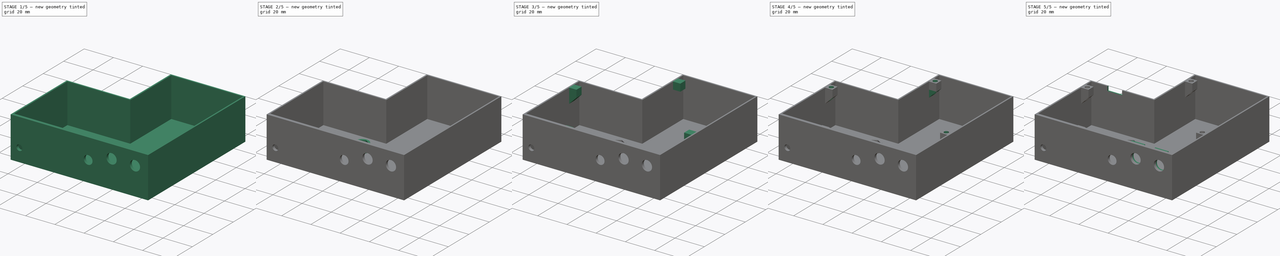
[diagram: build sequence overview — one tinted view per stage of 5, left to right]
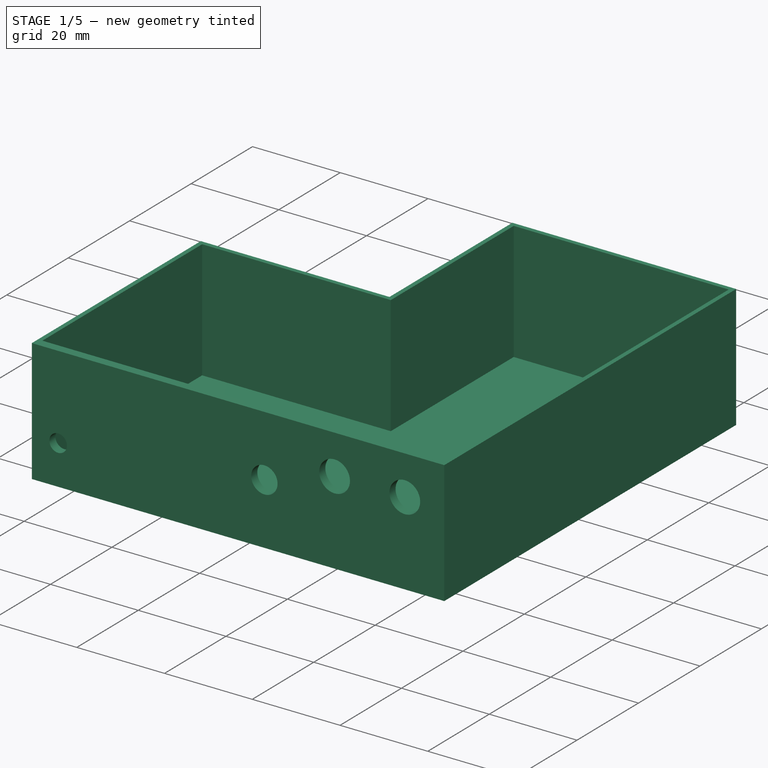
[diagram: stage 1 of 5 — iso view after this stage's code; geometry added in this stage tinted green]
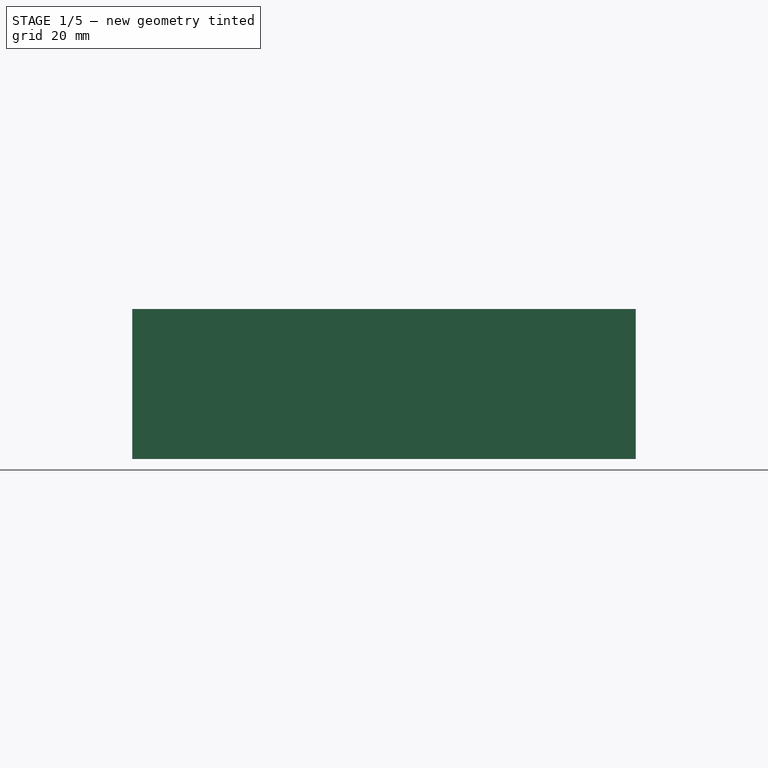
[diagram: stage 1 of 5 — front view after this stage's code; geometry added in this stage tinted green]
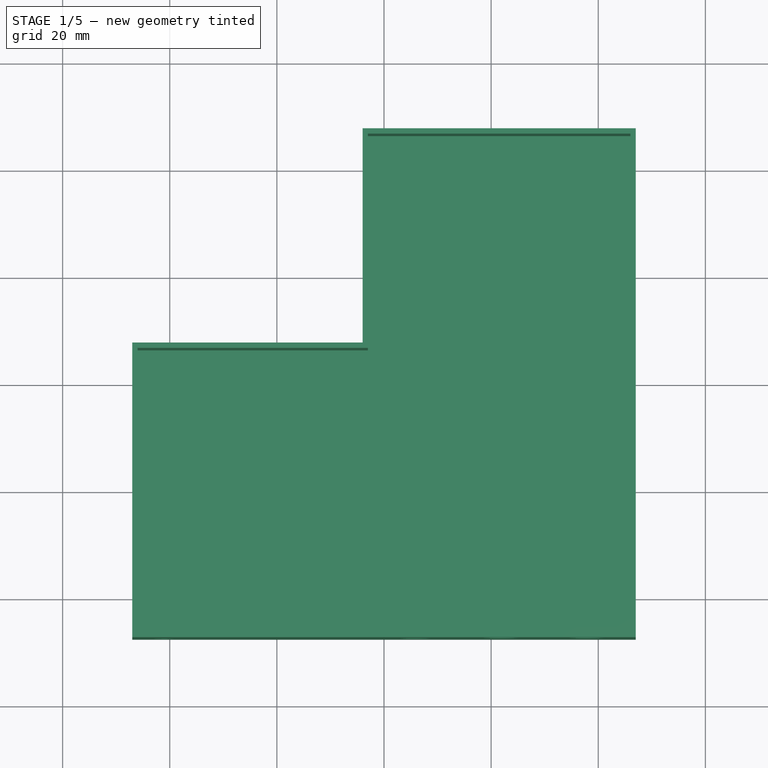
[diagram: stage 1 of 5 — top view after this stage's code; geometry added in this stage tinted green]
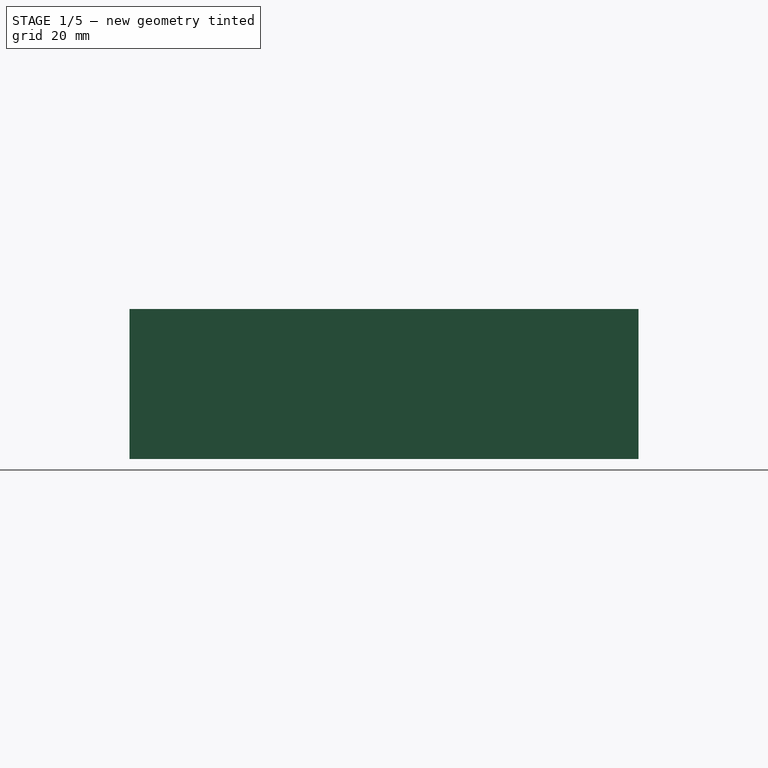
[diagram: stage 1 of 5 — right view after this stage's code; geometry added in this stage tinted green]
FCSTD DOCUMENT  (FreeCAD 0.16R5239 (Git))
Label: elecase2
License: All rights reserved
LicenseURL: http://en.wikipedia.org/wiki/All_rights_reserved
objects: Sketcher::SketchObject×15, PartDesign::Pad×8, PartDesign::Pocket×7
note: 45 computed .brp shape members not serialized (recipe doc carries the construction recipe); baked Part::Feature solids carry a one-line shape summary decoded from their .brp

FEATURE [Sketcher::SketchObject] Sketch
  sketch-geometry (6):
    g0: LineSegment StartX=-4 StartY=7.5 StartZ=0 EndX=-4 EndY=47.5 EndZ=0
    g1: LineSegment StartX=-4 StartY=47.5 StartZ=0 EndX=47 EndY=47.5 EndZ=0
    g2: LineSegment StartX=47 StartY=47.5 StartZ=0 EndX=47 EndY=-47.5 EndZ=0
    g3: LineSegment StartX=47 StartY=-47.5 StartZ=0 EndX=-47 EndY=-47.5 EndZ=0
    g4: LineSegment StartX=-47 StartY=-47.5 StartZ=0 EndX=-47 EndY=7.5 EndZ=0
    g5: LineSegment StartX=-47 StartY=7.5 StartZ=0 EndX=-4 EndY=7.5 EndZ=0
  constraints (18):
    c: Vertical(g0)
    c: Coincident(g0,g1)
    c: Horizontal(g1)
    c: Coincident(g1,g2)
    c: Vertical(g2)
    c: Coincident(g2,g3)
    c: Horizontal(g3)
    c: Coincident(g3,g4)
    c: Vertical(g4)
    c: Coincident(g4,g5)
    c: Coincident(g5,g0)
    c: Horizontal(g5)
    c: DistanceX(g1) = 51
    c: DistanceY(g2) = -95
    c: DistanceX(g5) = 43
    c: Symmetric(g3,g2,g-2)
    c: Symmetric(g1,g2,g-1)
    c: DistanceY(g4) = 55
FEATURE [PartDesign::Pad] Pad
  Length = 28
  Length2 = 100
  Sketch = -> Sketch
  Type = 0
FEATURE [Sketcher::SketchObject] Sketch001
  ExternalGeometry = -> [Pad]
  Placement = pos=(0,0,28) rot=(0,0,1;0rad)
  Support = -> Pad [Face8]
  sketch-geometry (6):
    g0: LineSegment StartX=-46 StartY=6.5 StartZ=0 EndX=-46 EndY=-45.5 EndZ=0
    g1: LineSegment StartX=-46 StartY=-45.5 StartZ=0 EndX=46 EndY=-45.5 EndZ=0
    g2: LineSegment StartX=46 StartY=-45.5 StartZ=0 EndX=46 EndY=46.5 EndZ=0
    g3: LineSegment StartX=46 StartY=46.5 StartZ=0 EndX=-3 EndY=46.5 EndZ=0
    g4: LineSegment StartX=-3 StartY=46.5 StartZ=0 EndX=-3 EndY=6.5 EndZ=0
    g5: LineSegment StartX=-3 StartY=6.5 StartZ=0 EndX=-46 EndY=6.5 EndZ=0
  constraints (18):
    c: Vertical(g0)
    c: Coincident(g0,g1)
    c: Horizontal(g1)
    c: Coincident(g1,g2)
    c: Vertical(g2)
    c: Coincident(g2,g3)
    c: Horizontal(g3)
    c: Coincident(g3,g4)
    c: Vertical(g4)
    c: Coincident(g4,g5)
    c: Coincident(g5,g0)
    c: Horizontal(g5)
    c: DistanceY(g-3,g1) = 2
    c: DistanceX(g1,g-3) = 1
    c: DistanceX(g-3,g0) = 1
    c: DistanceY(g4,g-4) = 1
    c: DistanceX(g4,g-4) = -1
    c: DistanceY(g3,g-4) = 1
FEATURE [PartDesign::Pocket] Pocket
  Length = 27
  Sketch = -> Sketch001
  Type = 0
FEATURE [Sketcher::SketchObject] Sketch002
  ExternalGeometry = -> [Pocket]
  Placement = pos=(0,-47.5,0) rot=(1,0,0;1.5708rad)
  Support = -> Pocket [Face8]
  sketch-geometry (4):
    g0: Circle CenterX=38 CenterY=19 CenterZ=0 NormalX=0 NormalY=0 NormalZ=1 Radius=3.5
    g1: Circle CenterX=22 CenterY=19 CenterZ=0 NormalX=0 NormalY=0 NormalZ=1 Radius=3.5
    g2: Circle CenterX=6 CenterY=14 CenterZ=0 NormalX=0 NormalY=0 NormalZ=1 Radius=3
    g3: Circle CenterX=-41 CenterY=9 CenterZ=0 NormalX=0 NormalY=0 NormalZ=1 Radius=2
  constraints (12):
    c: Radius(g0) = 3.5
    c: Equal(g0,g1)
    c: Radius(g2) = 3
    c: Radius(g3) = 2
    c: DistanceY(g-3,g0) = -9
    c: DistanceX(g1,g0) = 16
    c: DistanceX(g0,g-3) = 9
    c: DistanceY(g1,g0) = 0
    c: DistanceX(g2,g1) = 16
    c: DistanceY(g-3,g2) = 14
    c: DistanceX(g3,g-4) = -6
    c: DistanceY(g3,g-4) = -9
FEATURE [PartDesign::Pocket] Pocket001
  Length = 4
  Sketch = -> Sketch002
  Type = 0
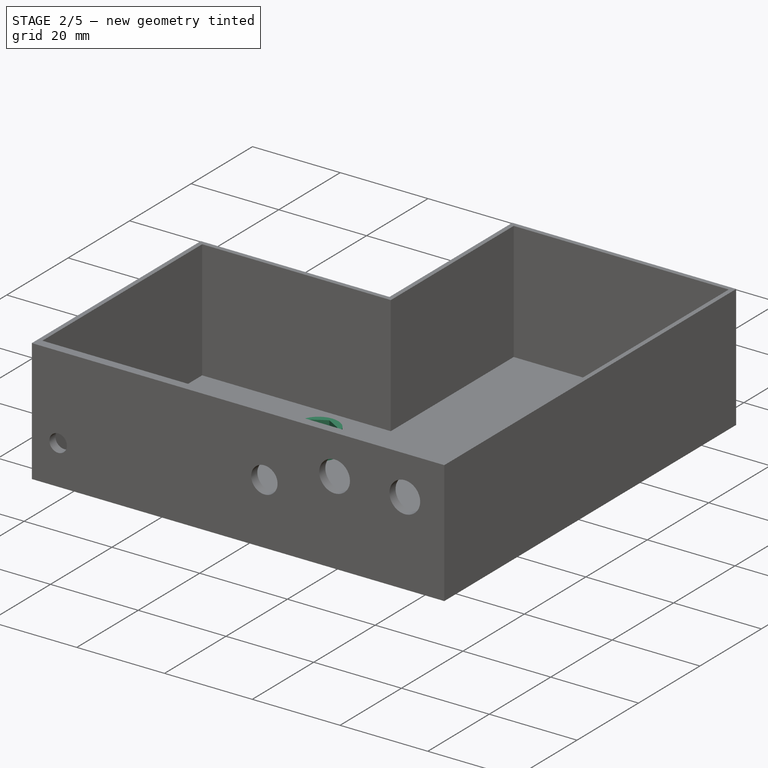
[diagram: stage 2 of 5 — iso view after this stage's code; geometry added in this stage tinted green]
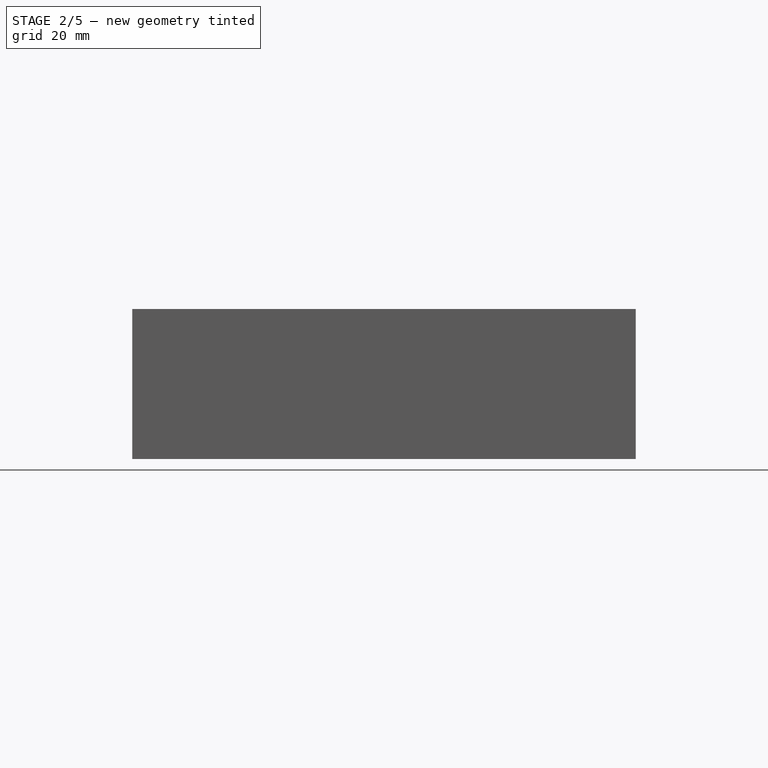
[diagram: stage 2 of 5 — front view after this stage's code; geometry added in this stage tinted green]
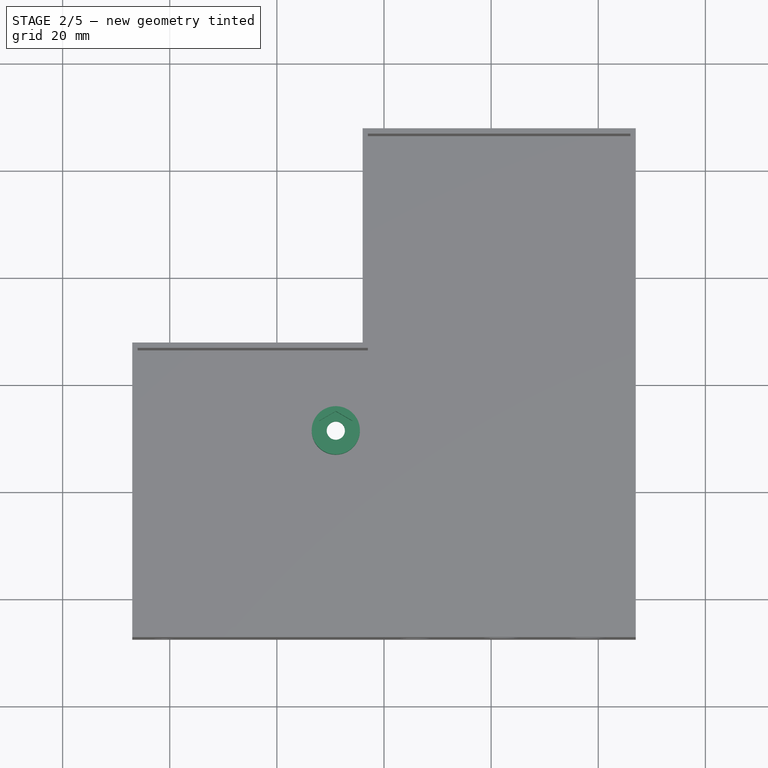
[diagram: stage 2 of 5 — top view after this stage's code; geometry added in this stage tinted green]
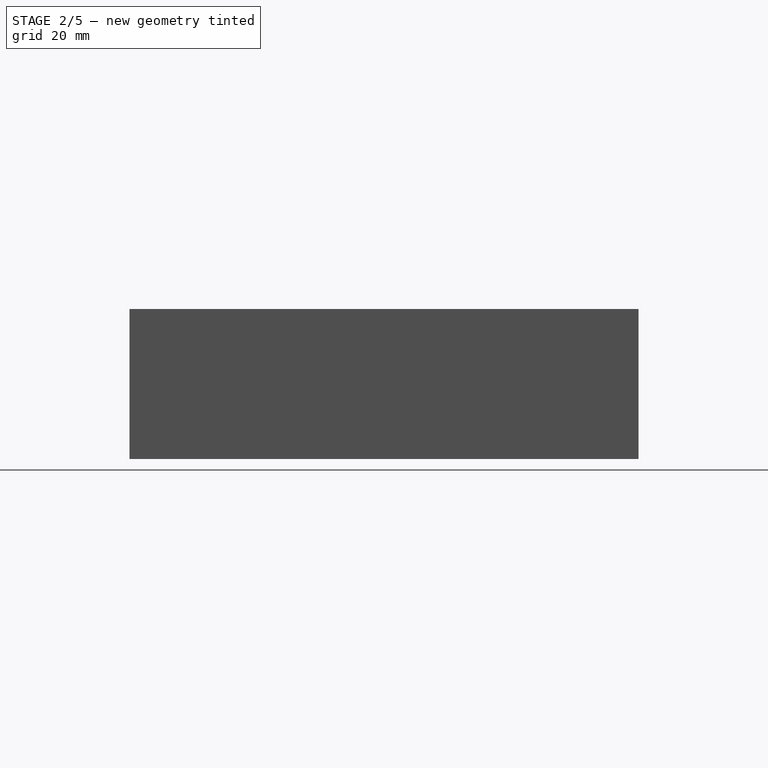
[diagram: stage 2 of 5 — right view after this stage's code; geometry added in this stage tinted green]
FEATURE [Sketcher::SketchObject] Sketch003
  ExternalGeometry = -> [Pocket001]
  Placement = pos=(0,0,1) rot=(0,0,1;0rad)
  Support = -> Pocket001 [Face19]
  sketch-geometry (1):
    g0: Circle CenterX=-9 CenterY=-8.5 CenterZ=0 NormalX=0 NormalY=0 NormalZ=1 Radius=4.5
  constraints (3):
    c: Radius(g0) = 4.5
    c: DistanceX(g-3,g0) = 37
    c: DistanceY(g0,g-3) = 15
FEATURE [PartDesign::Pad] Pad001
  Length = 5
  Length2 = 5
  Sketch = -> Sketch003
  Type = 0
FEATURE [Sketcher::SketchObject] Sketch004
  ExternalGeometry = -> [Pad001]
  Placement = pos=(0,0,6) rot=(0,0,1;0rad)
  Support = -> Pad001 [Face21]
  sketch-geometry (1):
    g0: Circle CenterX=-9 CenterY=-8.5 CenterZ=0 NormalX=0 NormalY=0 NormalZ=1 Radius=1.7
  constraints (2):
    c: Radius(g0) = 1.7
    c: Coincident(g0,g-3)
FEATURE [PartDesign::Pocket] Pocket002
  Length = 6
  Sketch = -> Sketch004
  Type = 0
FEATURE [Sketcher::SketchObject] Sketch005
  ExternalGeometry = -> [Pocket002]
  Placement = pos=(0,0,6) rot=(0,0,1;0rad)
  Support = -> Pocket002 [Face20]
  sketch-geometry (7):
    g0: LineSegment StartX=-5.9 StartY=-10.2898 StartZ=0 EndX=-5.9 EndY=-6.71021 EndZ=0
    g1: LineSegment StartX=-5.9 StartY=-6.71021 StartZ=0 EndX=-9 EndY=-4.92043 EndZ=0
    g2: LineSegment StartX=-9 StartY=-4.92043 StartZ=0 EndX=-12.1 EndY=-6.71021 EndZ=0
    g3: LineSegment StartX=-12.1 StartY=-6.71021 StartZ=0 EndX=-12.1 EndY=-10.2898 EndZ=0
    g4: LineSegment StartX=-12.1 StartY=-10.2898 StartZ=0 EndX=-9 EndY=-12.0796 EndZ=0
    g5: LineSegment StartX=-9 StartY=-12.0796 StartZ=0 EndX=-5.9 EndY=-10.2898 EndZ=0
    g6: Circle [constr] CenterX=-9 CenterY=-8.5 CenterZ=0 NormalX=0 NormalY=0 NormalZ=1 Radius=3.57957
  constraints (16):
    c: Coincident(g0,g1)
    c: Coincident(g1,g2)
    c: Coincident(g2,g3)
    c: Coincident(g3,g4)
    c: Coincident(g4,g5)
    c: Coincident(g5,g0)
    c: Equal(g0, g1-g5) x5
    c: PointOnObject(g0,g6)
    c: PointOnObject(g1,g6)
    c: PointOnObject(g2,g6)
    c: PointOnObject(g3,g6)
    c: PointOnObject(g4,g6)
    c: PointOnObject(g5,g6)
    c: Vertical(g3)
    c: DistanceX(g2,g0) = 6.2
    c: Coincident(g6,g-3)
FEATURE [PartDesign::Pocket] Pocket003
  Length = 4
  Sketch = -> Sketch005
  Type = 0
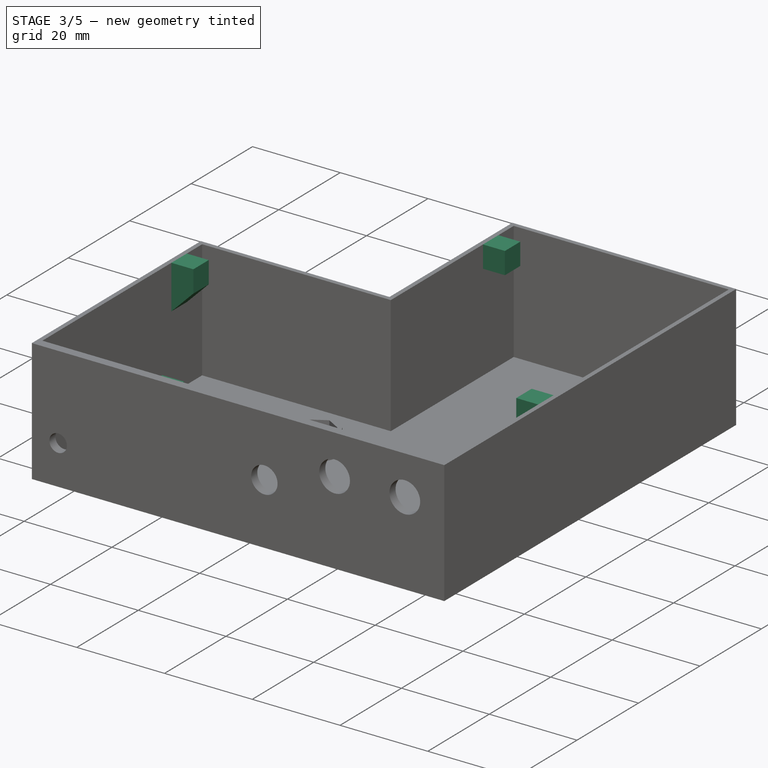
[diagram: stage 3 of 5 — iso view after this stage's code; geometry added in this stage tinted green]
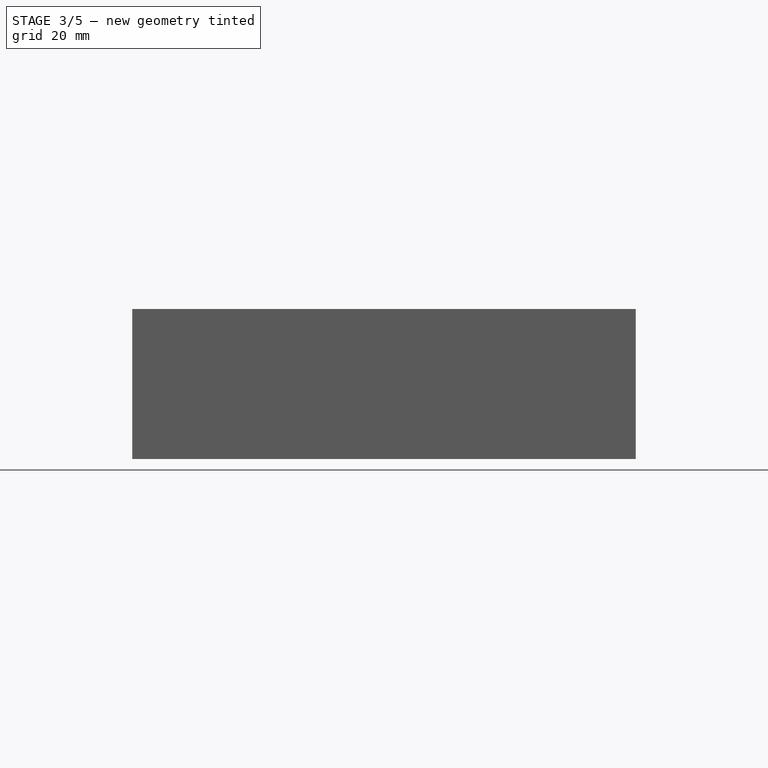
[diagram: stage 3 of 5 — front view after this stage's code; geometry added in this stage tinted green]
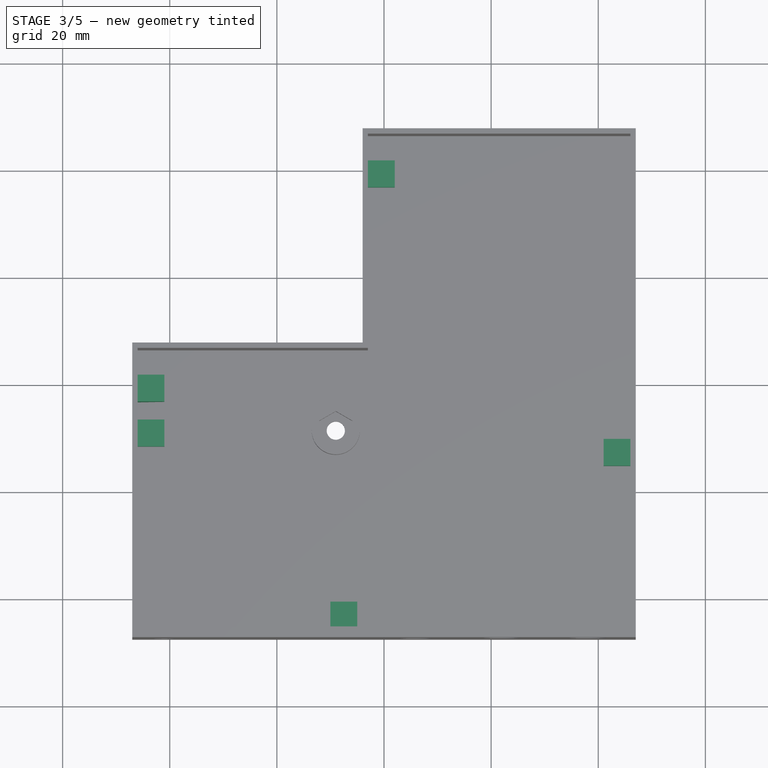
[diagram: stage 3 of 5 — top view after this stage's code; geometry added in this stage tinted green]
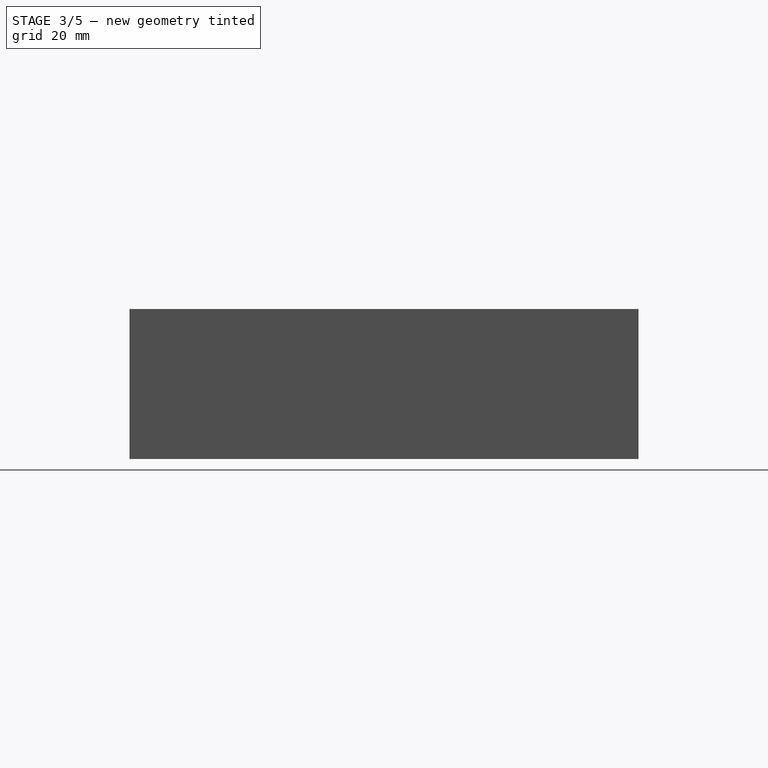
[diagram: stage 3 of 5 — right view after this stage's code; geometry added in this stage tinted green]
FEATURE [Sketcher::SketchObject] Sketch006
  ExternalGeometry = -> [Pocket003]
  Placement = pos=(0,0,1) rot=(0,0,1;0rad)
  Support = -> Pocket003 [Face21]
  sketch-geometry (8):
    g0: LineSegment StartX=-46 StartY=-11.5 StartZ=0 EndX=-41 EndY=-11.5 EndZ=0
    g1: LineSegment StartX=-41 StartY=-11.5 StartZ=0 EndX=-41 EndY=-6.5 EndZ=0
    g2: LineSegment StartX=-41 StartY=-6.5 StartZ=0 EndX=-46 EndY=-6.5 EndZ=0
    g3: LineSegment StartX=-46 StartY=-6.5 StartZ=0 EndX=-46 EndY=-11.5 EndZ=0
    g4: LineSegment StartX=-10 StartY=-40.5 StartZ=0 EndX=-5 EndY=-40.5 EndZ=0
    g5: LineSegment StartX=-5 StartY=-40.5 StartZ=0 EndX=-5 EndY=-45.5 EndZ=0
    g6: LineSegment StartX=-5 StartY=-45.5 StartZ=0 EndX=-10 EndY=-45.5 EndZ=0
    g7: LineSegment StartX=-10 StartY=-45.5 StartZ=0 EndX=-10 EndY=-40.5 EndZ=0
  constraints (24):
    c: Coincident(g0,g1)
    c: Coincident(g1,g2)
    c: Coincident(g2,g3)
    c: Coincident(g3,g0)
    c: Horizontal(g0)
    c: Horizontal(g2)
    c: Vertical(g1)
    c: Vertical(g3)
    c: Coincident(g4,g5)
    c: Coincident(g5,g6)
    c: Coincident(g6,g7)
    c: Coincident(g7,g4)
    c: Horizontal(g4)
    c: Horizontal(g6)
    c: Vertical(g5)
    c: Vertical(g7)
    c: DistanceX(g0) = 5
    c: Equal(g0,g3)
    c: Equal(g3,g7)
    c: Equal(g7,g4)
    c: DistanceY(g-3,g2) = 39
    c: PointOnObject(g0,g-4)
    c: DistanceX(g5,g-4) = -41
    c: PointOnObject(g5,g-3)
FEATURE [PartDesign::Pad] Pad002
  Length = 5
  Length2 = 100
  Sketch = -> Sketch006
  Type = 0
FEATURE [Sketcher::SketchObject] Sketch007
  ExternalGeometry = -> [Pad002]
  Placement = pos=(0,0,28) rot=(0,0,1;0rad)
  Support = -> Pad002 [Face5]
  sketch-geometry (12):
    g0: LineSegment StartX=-46 StartY=1.5 StartZ=0 EndX=-41 EndY=1.5 EndZ=0
    g1: LineSegment StartX=-41 StartY=1.5 StartZ=0 EndX=-41 EndY=-3.5 EndZ=0
    g2: LineSegment StartX=-41 StartY=-3.5 StartZ=0 EndX=-46 EndY=-3.5 EndZ=0
    g3: LineSegment StartX=-46 StartY=-3.5 StartZ=0 EndX=-46 EndY=1.5 EndZ=0
    g4: LineSegment StartX=46 StartY=-10.5 StartZ=0 EndX=41 EndY=-10.5 EndZ=0
    g5: LineSegment StartX=41 StartY=-10.5 StartZ=0 EndX=41 EndY=-15.5 EndZ=0
    g6: LineSegment StartX=41 StartY=-15.5 StartZ=0 EndX=46 EndY=-15.5 EndZ=0
    g7: LineSegment StartX=46 StartY=-15.5 StartZ=0 EndX=46 EndY=-10.5 EndZ=0
    g8: LineSegment StartX=2 StartY=41.5 StartZ=0 EndX=-3 EndY=41.5 EndZ=0
    g9: LineSegment StartX=-3 StartY=41.5 StartZ=0 EndX=-3 EndY=36.5 EndZ=0
    g10: LineSegment StartX=-3 StartY=36.5 StartZ=0 EndX=2 EndY=36.5 EndZ=0
    g11: LineSegment StartX=2 StartY=36.5 StartZ=0 EndX=2 EndY=41.5 EndZ=0
  constraints (36):
    c: Coincident(g0,g1)
    c: Coincident(g1,g2)
    c: Coincident(g2,g3)
    c: Coincident(g3,g0)
    c: Horizontal(g0)
    c: Horizontal(g2)
    c: Vertical(g1)
    c: Vertical(g3)
    c: Coincident(g4,g5)
    c: Coincident(g5,g6)
    c: Coincident(g6,g7)
    c: Coincident(g7,g4)
    c: Horizontal(g4)
    c: Horizontal(g6)
    c: Vertical(g5)
    c: Vertical(g7)
    c: Coincident(g8,g9)
    c: Coincident(g9,g10)
    c: Coincident(g10,g11)
    c: Coincident(g11,g8)
    c: Horizontal(g8)
    c: Horizontal(g10)
    c: Vertical(g9)
    c: Vertical(g11)
    c: DistanceX(g0) = 5
    c: Equal(g0,g3)
    c: Equal(g3,g4)
    c: Equal(g4,g7)
    c: Equal(g7,g8)
    c: Equal(g8,g11)
    c: DistanceY(g0,g-3) = 5
    c: PointOnObject(g0,g-3)
    c: DistanceY(g-4,g5) = 30
    c: DistanceY(g8,g-6) = 5
    c: PointOnObject(g8,g-6)
    c: PointOnObject(g4,g-5)
FEATURE [PartDesign::Pad] Pad003
  Length = 5
  Length2 = 100
  Reversed = true
  Sketch = -> Sketch007
  Type = 0
FEATURE [Sketcher::SketchObject] Sketch008
  ExternalGeometry = -> [Pad003]
  Placement = pos=(0,-3.5,0) rot=(1,0,0;1.5708rad)
  Support = -> Pad003 [Face26]
  sketch-geometry (3):
    g0: LineSegment StartX=-46 StartY=18 StartZ=0 EndX=-46 EndY=23 EndZ=0
    g1: LineSegment StartX=-46 StartY=23 StartZ=0 EndX=-41 EndY=23 EndZ=0
    g2: LineSegment StartX=-41 StartY=23 StartZ=0 EndX=-46 EndY=18 EndZ=0
  constraints (8):
    c: Vertical(g0)
    c: Coincident(g0,g1)
    c: Horizontal(g1)
    c: Coincident(g1,g2)
    c: Coincident(g2,g0)
    c: Angle(g2,g0) = 0.785398
    c: Coincident(g0,g-3)
    c: Coincident(g1,g-3)
FEATURE [PartDesign::Pad] Pad004
  Length = 5
  Length2 = 100
  Reversed = true
  Sketch = -> Sketch008
  Type = 0
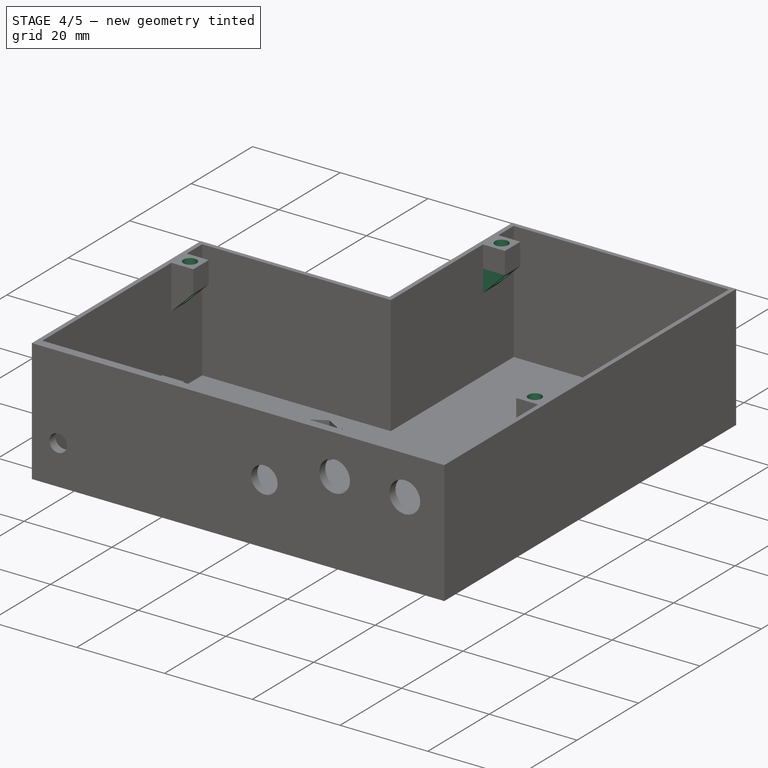
[diagram: stage 4 of 5 — iso view after this stage's code; geometry added in this stage tinted green]
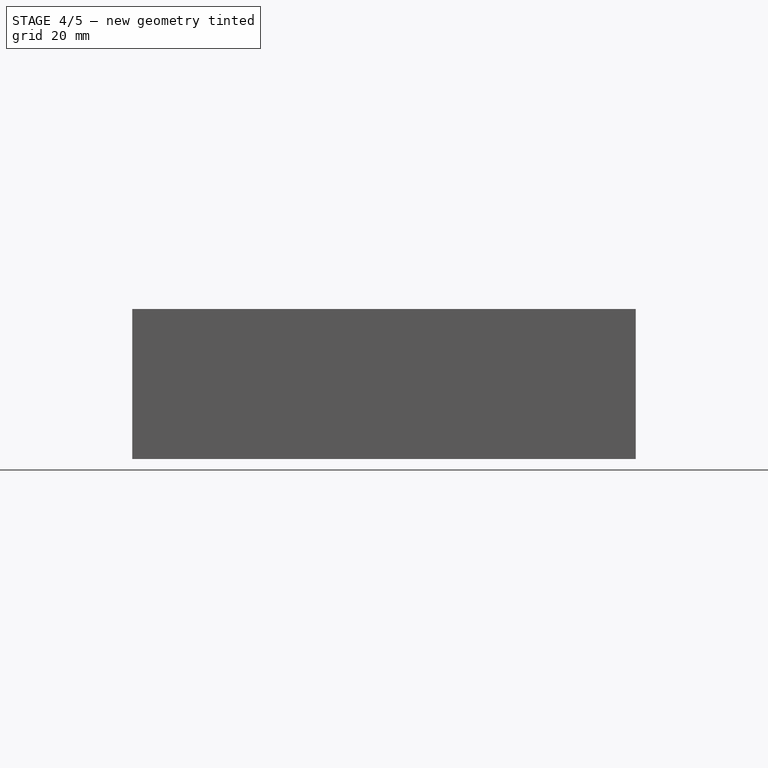
[diagram: stage 4 of 5 — front view after this stage's code; geometry added in this stage tinted green]
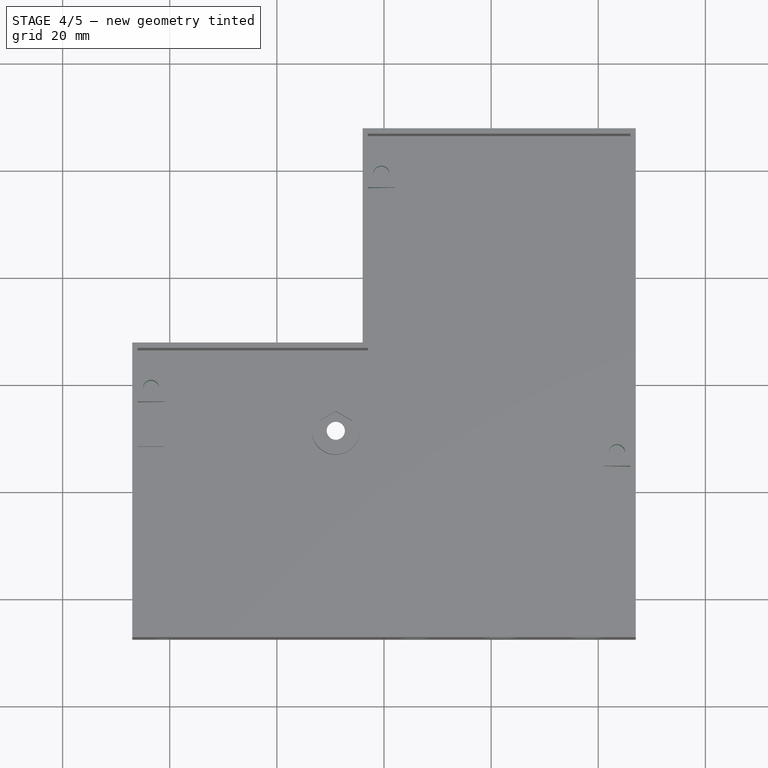
[diagram: stage 4 of 5 — top view after this stage's code; geometry added in this stage tinted green]
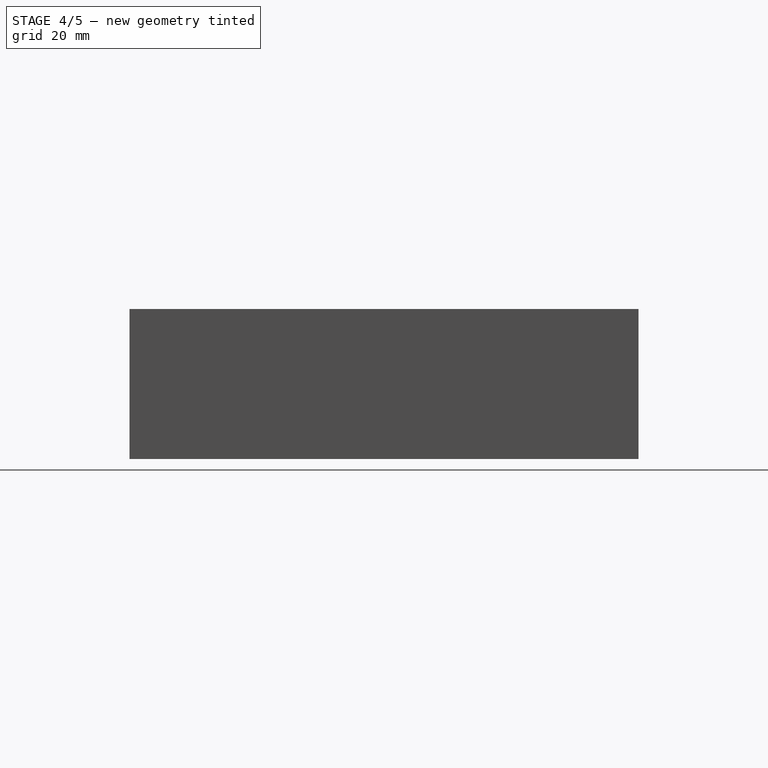
[diagram: stage 4 of 5 — right view after this stage's code; geometry added in this stage tinted green]
FEATURE [Sketcher::SketchObject] Sketch009
  ExternalGeometry = -> [Pad004]
  Placement = pos=(0,-15.5,0) rot=(1,0,0;1.5708rad)
  Support = -> Pad004 [Face41]
  sketch-geometry (3):
    g0: LineSegment StartX=46 StartY=23 StartZ=0 EndX=41 EndY=23 EndZ=0
    g1: LineSegment StartX=41 StartY=23 StartZ=0 EndX=46 EndY=18 EndZ=0
    g2: LineSegment StartX=46 StartY=18 StartZ=0 EndX=46 EndY=23 EndZ=0
  constraints (6):
    c: Horizontal(g0)
    c: Coincident(g0,g1)
    c: Coincident(g1,g2)
    c: Coincident(g2,g0)
    c: Vertical(g2)
    c: Angle(g2,g1) = 0.785398
FEATURE [PartDesign::Pad] Pad005
  Length = 5
  Length2 = 100
  Reversed = true
  Sketch = -> Sketch009
  Type = 0
FEATURE [Sketcher::SketchObject] Sketch010
  ExternalGeometry = -> [Pad005]
  Placement = pos=(0,36.5,0) rot=(1,0,0;1.5708rad)
  Support = -> Pad005 [Face36]
  sketch-geometry (3):
    g0: LineSegment StartX=-3 StartY=18 StartZ=0 EndX=-3 EndY=23 EndZ=0
    g1: LineSegment StartX=-3 StartY=23 StartZ=0 EndX=2 EndY=23 EndZ=0
    g2: LineSegment StartX=2 StartY=23 StartZ=0 EndX=-3 EndY=18 EndZ=0
  constraints (8):
    c: Vertical(g0)
    c: Coincident(g0,g1)
    c: Horizontal(g1)
    c: Coincident(g1,g2)
    c: Coincident(g2,g0)
    c: Angle(g2,g0) = 0.785398
    c: Coincident(g0,g-3)
    c: Coincident(g1,g-3)
FEATURE [PartDesign::Pad] Pad006
  Length = 5
  Length2 = 100
  Reversed = true
  Sketch = -> Sketch010
  Type = 0
FEATURE [Sketcher::SketchObject] Sketch011
  ExternalGeometry = -> [Pad006]
  Placement = pos=(0,0,28) rot=(0,0,1;0rad)
  Support = -> Pad006 [Face12]
  sketch-geometry (10):
    g0: Circle CenterX=43.5 CenterY=-13 CenterZ=0 NormalX=0 NormalY=0 NormalZ=1 Radius=1.5
    g1: Circle CenterX=-0.5 CenterY=39 CenterZ=0 NormalX=0 NormalY=0 NormalZ=1 Radius=1.5
    g2: Circle CenterX=-43.5 CenterY=-1 CenterZ=0 NormalX=0 NormalY=0 NormalZ=1 Radius=1.5
    g3: LineSegment [constr] StartX=41 StartY=-10.5 StartZ=0 EndX=43.5 EndY=-13 EndZ=0
    g4: LineSegment [constr] StartX=43.5 StartY=-13 StartZ=0 EndX=46 EndY=-15.5 EndZ=0
    g5: LineSegment [constr] StartX=-3 StartY=41.5 StartZ=0 EndX=-0.5 EndY=39 EndZ=0
    g6: LineSegment [constr] StartX=-0.5 StartY=39 StartZ=0 EndX=2 EndY=36.5 EndZ=0
    g7: LineSegment [constr] StartX=-41 StartY=-3.5 StartZ=0 EndX=-43.5 EndY=-1 EndZ=0
    g8: LineSegment [constr] StartX=-43.5 StartY=-1 StartZ=0 EndX=-41 EndY=-3.5 EndZ=0
    g9: LineSegment [constr] StartX=-43.5 StartY=-1 StartZ=0 EndX=-46 EndY=1.5 EndZ=0
  constraints (25):
    c: Radius(g0) = 1.5
    c: Equal(g0,g2)
    c: Equal(g2,g1)
    c: Coincident(g3,g0)
    c: Coincident(g3,g4)
    c: Parallel(g3,g4)
    c: Equal(g3,g4)
    c: Coincident(g5,g1)
    c: Coincident(g5,g6)
    c: Parallel(g5,g6)
    c: Equal(g6,g5)
    c: Coincident(g7,g2)
    c: Coincident(g7,g8)
    c: Equal(g7,g8)
    c: Parallel(g7,g8)
    c: Coincident(g9,g2)
    c: Parallel(g9,g7)
    c: Coincident(g9,g-7)
    c: Coincident(g7,g-3)
    c: Equal(g9,g7)
    c: Coincident(g4,g-5)
    c: Coincident(g3,g-8)
    c: Equal(g4,g3)
    c: Coincident(g5,g-9)
    c: Coincident(g6,g-6)
FEATURE [PartDesign::Pocket] Pocket004
  Length = 12
  Sketch = -> Sketch011
  Type = 0
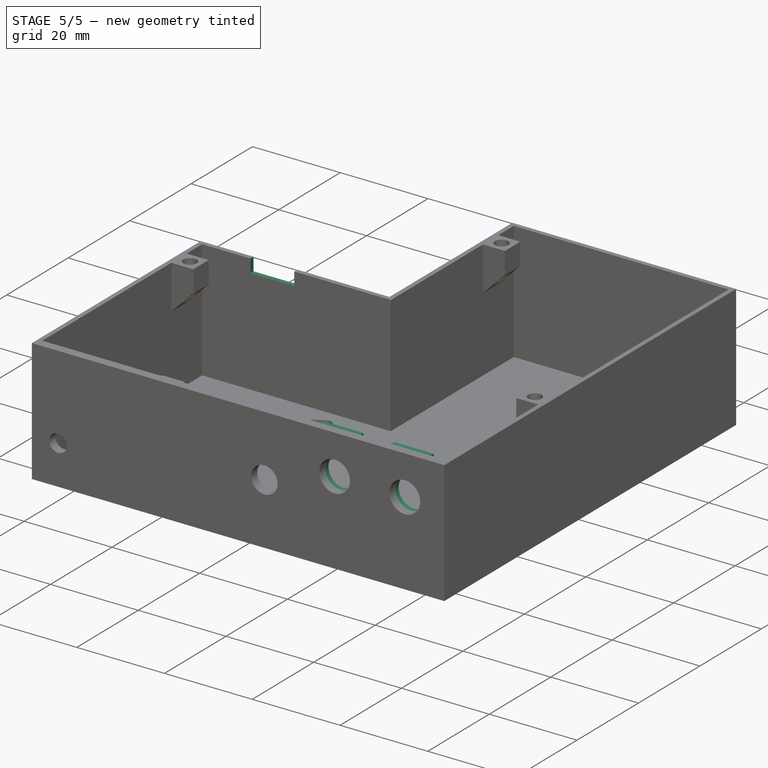
[diagram: stage 5 of 5 — iso view after this stage's code; geometry added in this stage tinted green]
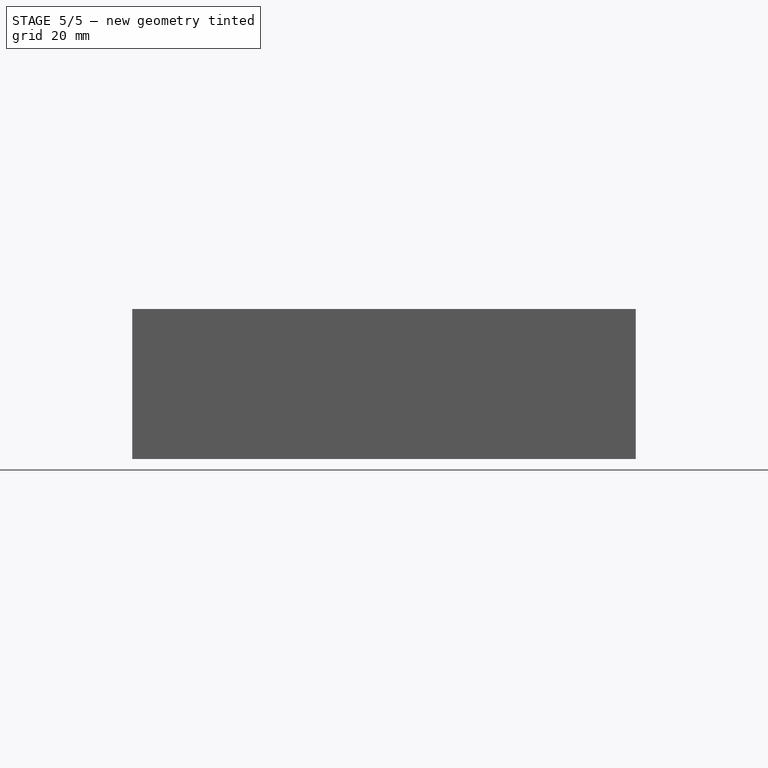
[diagram: stage 5 of 5 — front view after this stage's code; geometry added in this stage tinted green]
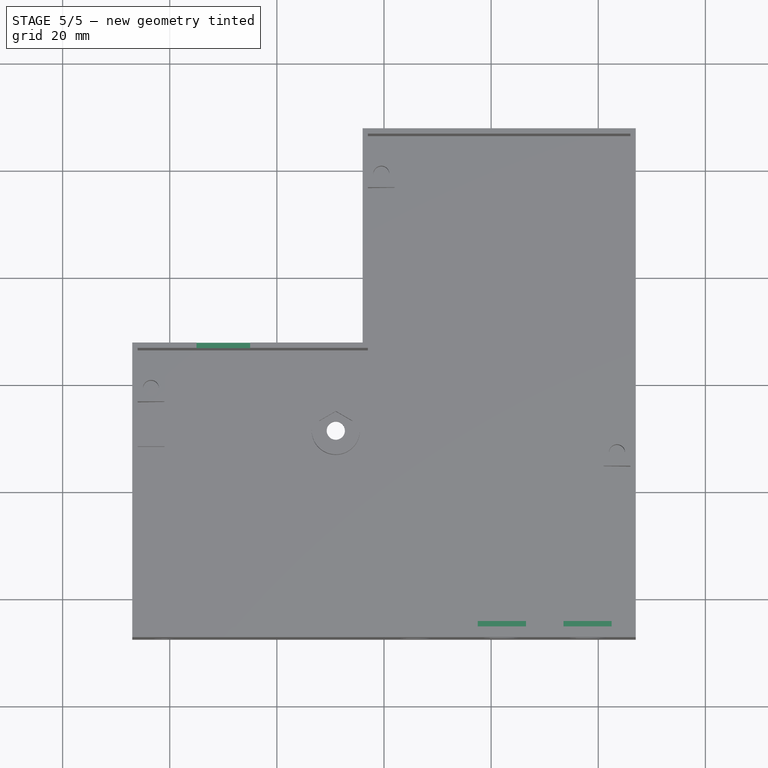
[diagram: stage 5 of 5 — top view after this stage's code; geometry added in this stage tinted green]
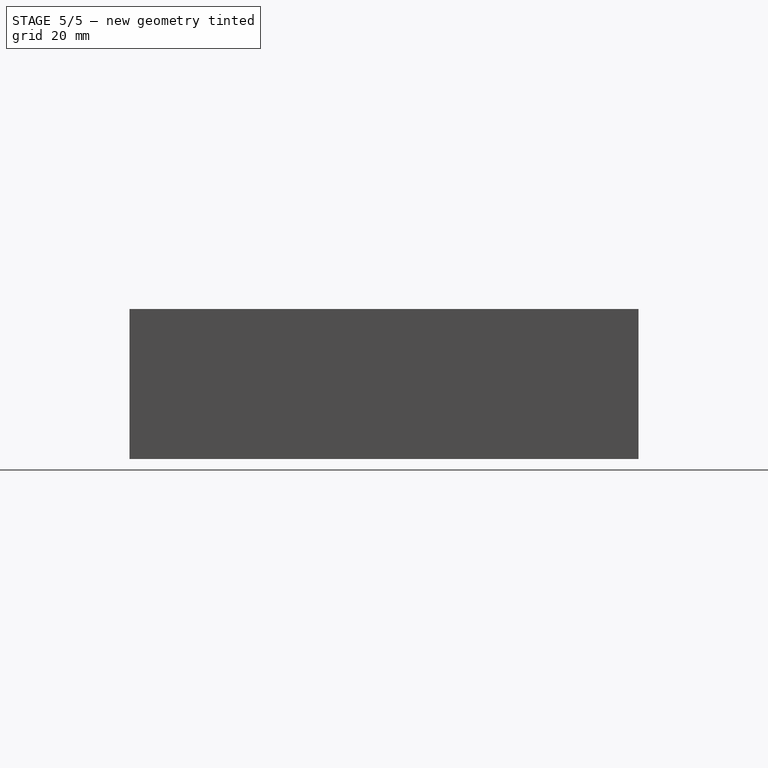
[diagram: stage 5 of 5 — right view after this stage's code; geometry added in this stage tinted green]
FEATURE [Sketcher::SketchObject] Sketch012
  ExternalGeometry = -> [Pocket004]
  Placement = pos=(0,7.5,0) rot=(0,0.707107,0.707107;3.14159rad)
  Support = -> Pocket004 [Face2]
  sketch-geometry (4):
    g0: LineSegment StartX=25 StartY=28 StartZ=0 EndX=35 EndY=28 EndZ=0
    g1: LineSegment StartX=35 StartY=28 StartZ=0 EndX=35 EndY=25 EndZ=0
    g2: LineSegment StartX=35 StartY=25 StartZ=0 EndX=25 EndY=25 EndZ=0
    g3: LineSegment StartX=25 StartY=25 StartZ=0 EndX=25 EndY=28 EndZ=0
  constraints (12):
    c: Coincident(g0,g1)
    c: Coincident(g0,g3)
    c: Coincident(g1,g2)
    c: Coincident(g2,g3)
    c: DistanceX(g0,g-4) = 12
    c: DistanceY(g1) = -3
    c: PointOnObject(g0,g-4)
    c: Horizontal(g0)
    c: Horizontal(g2)
    c: Vertical(g3)
    c: Vertical(g1)
    c: DistanceX(g2) = -10
FEATURE [PartDesign::Pocket] Pocket005
  Length = 2
  Sketch = -> Sketch012
  Type = 0
FEATURE [Sketcher::SketchObject] Sketch013
  ExternalGeometry = -> [Pocket005]
  Placement = pos=(0,-45.5,0) rot=(0,0.707107,0.707107;3.14159rad)
  Support = -> Pocket005 [Face16]
  sketch-geometry (12):
    g0: LineSegment StartX=-42.5 StartY=28 StartZ=0 EndX=-33.5 EndY=28 EndZ=0
    g1: LineSegment StartX=-33.5 StartY=28 StartZ=0 EndX=-33.5 EndY=1 EndZ=0
    g2: LineSegment StartX=-33.5 StartY=1 StartZ=0 EndX=-42.5 EndY=1 EndZ=0
    g3: LineSegment StartX=-42.5 StartY=1 StartZ=0 EndX=-42.5 EndY=28 EndZ=0
    g4: LineSegment StartX=-26.5 StartY=28 StartZ=0 EndX=-17.5 EndY=28 EndZ=0
    g5: LineSegment StartX=-17.5 StartY=28 StartZ=0 EndX=-17.5 EndY=1 EndZ=0
    g6: LineSegment StartX=-17.5 StartY=1 StartZ=0 EndX=-26.5 EndY=1 EndZ=0
    g7: LineSegment StartX=-26.5 StartY=1 StartZ=0 EndX=-26.5 EndY=28 EndZ=0
    g8: LineSegment [constr] StartX=-42.5 StartY=19 StartZ=0 EndX=-38 EndY=19 EndZ=0
    g9: LineSegment [constr] StartX=-38 StartY=19 StartZ=0 EndX=-33.5 EndY=19 EndZ=0
    g10: LineSegment [constr] StartX=-26.5 StartY=19 StartZ=0 EndX=-22 EndY=19 EndZ=0
    g11: LineSegment [constr] StartX=-22 StartY=19 StartZ=0 EndX=-17.5 EndY=19 EndZ=0
  constraints (37):
    c: Coincident(g0,g1)
    c: Coincident(g1,g2)
    c: Coincident(g2,g3)
    c: Coincident(g3,g0)
    c: Horizontal(g0)
    c: Horizontal(g2)
    c: Vertical(g1)
    c: Vertical(g3)
    c: Coincident(g4,g5)
    c: Coincident(g5,g6)
    c: Coincident(g6,g7)
    c: Coincident(g7,g4)
    c: Horizontal(g4)
    c: Horizontal(g6)
    c: Vertical(g5)
    c: Vertical(g7)
    c: DistanceX(g0) = 9
    c: Equal(g0,g4)
    c: PointOnObject(g0,g-5)
    c: PointOnObject(g1,g-6)
    c: PointOnObject(g4,g-5)
    c: PointOnObject(g6,g-6)
    c: PointOnObject(g8,g3)
    c: Coincident(g8,g-3)
    c: Coincident(g8,g9)
    c: PointOnObject(g9,g1)
    c: Horizontal(g9)
    c: PointOnObject(g10,g7)
    c: Coincident(g10,g-4)
    c: Coincident(g10,g11)
    c: PointOnObject(g11,g5)
    c: Horizontal(g8)
    c: Horizontal(g10)
    c: Horizontal(g11)
    c: Equal(g8,g9)
    c: Equal(g9,g10)
    c: Equal(g10,g11)
FEATURE [PartDesign::Pad] Pad007
  Length = 1
  Length2 = 100
  Sketch = -> Sketch013
  Type = 0
FEATURE [Sketcher::SketchObject] Sketch014
  ExternalGeometry = -> [Pad007]
  Placement = pos=(0,-44.5,0) rot=(0,0.707107,0.707107;3.14159rad)
  Support = -> Pad007 [Face61]
  sketch-geometry (8):
    g0: LineSegment [constr] StartX=-22 StartY=19 StartZ=0 EndX=-22 EndY=11 EndZ=0
    g1: LineSegment [constr] StartX=-22 StartY=11 StartZ=0 EndX=-38 EndY=11 EndZ=0
    g2: LineSegment [constr] StartX=-38 StartY=11 StartZ=0 EndX=-38 EndY=19 EndZ=0
    g3: Circle CenterX=-22 CenterY=11 CenterZ=0 NormalX=0 NormalY=0 NormalZ=1 Radius=1.1
    g4: Circle CenterX=-38 CenterY=11 CenterZ=0 NormalX=0 NormalY=0 NormalZ=1 Radius=1.1
    g5: Circle CenterX=-22 CenterY=19 CenterZ=0 NormalX=0 NormalY=0 NormalZ=1 Radius=3.5
    g6: Circle CenterX=-38 CenterY=19 CenterZ=0 NormalX=0 NormalY=0 NormalZ=1 Radius=3.5
    g7: GeomPoint [constr] X=-38 Y=15.5 Z=0
  constraints (18):
    c: Coincident(g0,g-3)
    c: Vertical(g0)
    c: Coincident(g0,g1)
    c: Horizontal(g1)
    c: Coincident(g1,g2)
    c: Coincident(g2,g-4)
    c: Vertical(g2)
    c: Coincident(g3,g0)
    c: Coincident(g4,g1)
    c: Coincident(g5,g0)
    c: Coincident(g6,g2)
    c: Radius(g3) = 1.1
    c: Equal(g4,g3)
    c: DistanceY(g0) = -8
    c: PointOnObject(g7,g-4)
    c: Equal(g6,g5)
    c: PointOnObject(g7,g2)
    c: PointOnObject(g7,g6)
FEATURE [PartDesign::Pocket] Pocket006
  Length = 2
  Sketch = -> Sketch014
  Type = 0
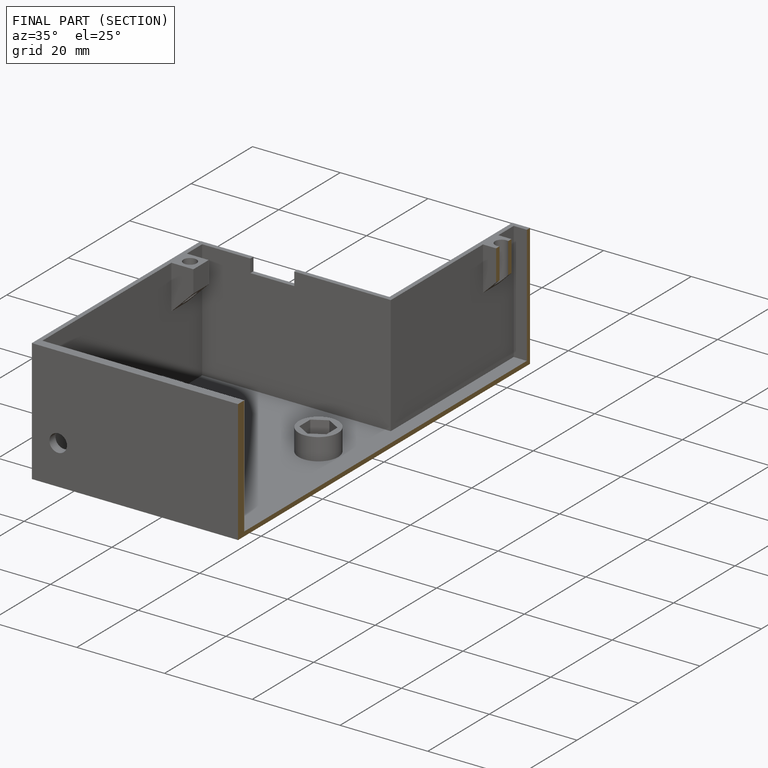
[diagram: finished part — half-section view (interior)]
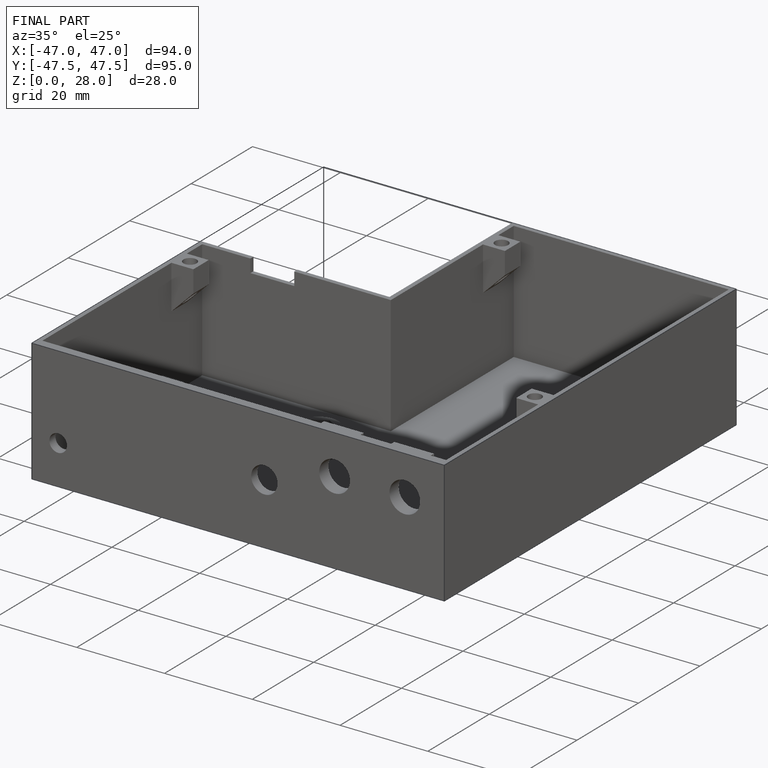
[diagram: finished part — iso view with bounding-box wireframe]
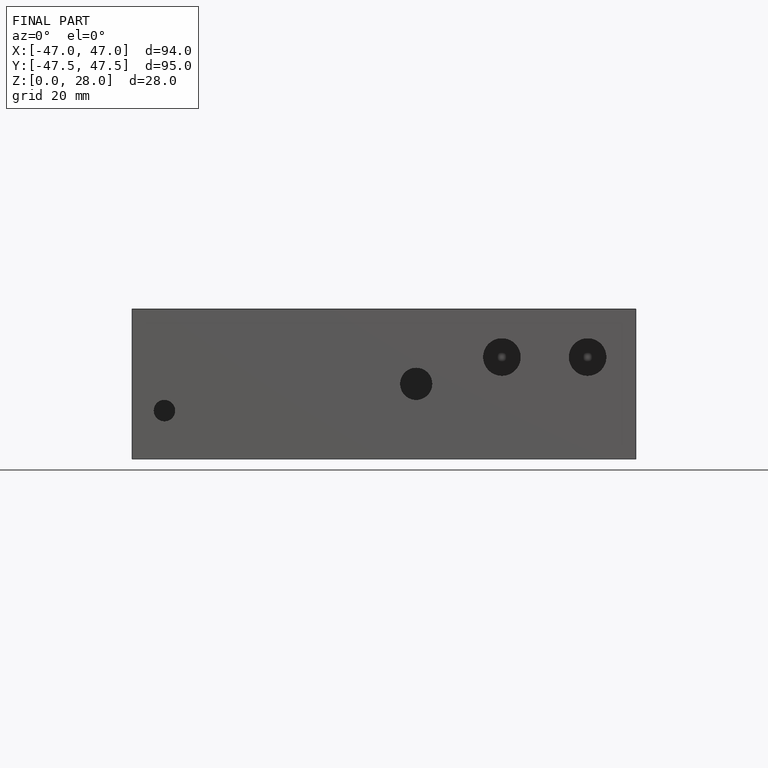
[diagram: finished part — front view with bounding-box wireframe]
